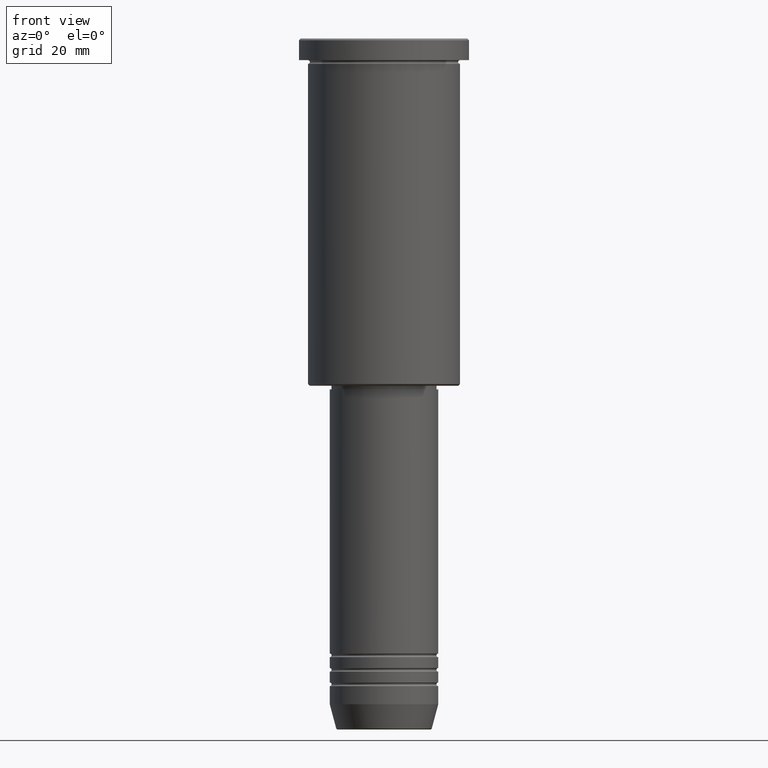
[diagram: clean part render]
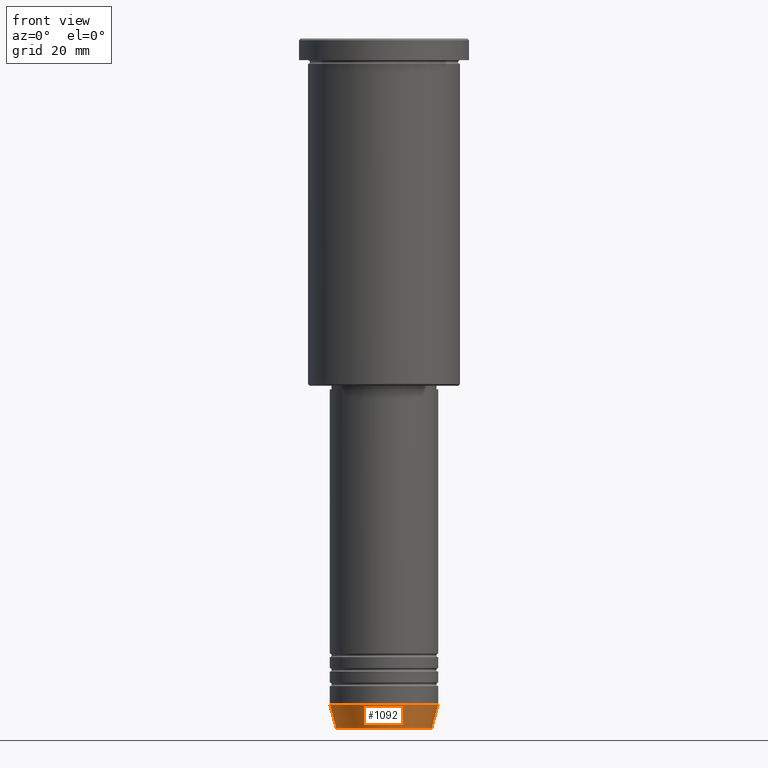
[diagram: same view with one face highlighted and labeled with its STEP entity id]
A machine part, front view. The second image highlights one B-rep face of the part: STEP entity #1092.
In plain terms, the highlighted conical surface has half-angle 15 deg.
Its self-contained STEP definition (entity closure, byte-faithful):
#41 = AXIS2_PLACEMENT_3D ( 'NONE', #715, #505, #1077 ) ;
#42 = AXIS2_PLACEMENT_3D ( 'NONE', #658, #1023, #222 ) ;
#130 = CARTESIAN_POINT ( 'NONE',  ( -15.00000000000000000, 1.836970198721029589E-15, -184.0000000000000000 ) ) ;
#173 = EDGE_CURVE ( 'NONE', #932, #424, #364, .T. ) ;
#175 = CARTESIAN_POINT ( 'NONE',  ( -13.22365507213719660, 1.728200442216588780E-15, -190.6294095225512422 ) ) ;
#190 = CARTESIAN_POINT ( 'NONE',  ( 0.000000000000000000, 0.000000000000000000, -184.0000000000000000 ) ) ;
#202 = DIRECTION ( 'NONE',  ( 1.000000000000000000, 0.000000000000000000, 0.000000000000000000 ) ) ;
#222 = DIRECTION ( 'NONE',  ( 1.000000000000000000, 0.000000000000000000, 0.000000000000000000 ) ) ;
#267 = VERTEX_POINT ( 'NONE', #130 ) ;
#309 = CARTESIAN_POINT ( 'NONE',  ( 13.22365507213719482, 0.000000000000000000, -190.6294095225512422 ) ) ;
#333 = VECTOR ( 'NONE', #725, 1000.000000000000000 ) ;
#364 = LINE ( 'NONE', #1018, #333 ) ;
#381 = DIRECTION ( 'NONE',  ( -0.000000000000000000, -0.000000000000000000, 1.000000000000000000 ) ) ;
#424 = VERTEX_POINT ( 'NONE', #1159 ) ;
#505 = DIRECTION ( 'NONE',  ( -0.000000000000000000, -0.000000000000000000, 1.000000000000000000 ) ) ;
#581 = EDGE_CURVE ( 'NONE', #267, #424, #595, .T. ) ;
#595 = CIRCLE ( 'NONE', #41, 15.00000000000000000 ) ;
#605 = EDGE_CURVE ( 'NONE', #757, #267, #777, .T. ) ;
#649 = ORIENTED_EDGE ( 'NONE', *, *, #581, .F. ) ;
#658 = CARTESIAN_POINT ( 'NONE',  ( 0.000000000000000000, 0.000000000000000000, -190.6294095225512422 ) ) ;
#715 = CARTESIAN_POINT ( 'NONE',  ( 0.000000000000000000, 0.000000000000000000, -184.0000000000000000 ) ) ;
#725 = DIRECTION ( 'NONE',  ( 0.2588190451025213501, 0.000000000000000000, 0.9659258262890680902 ) ) ;
#734 = FACE_OUTER_BOUND ( 'NONE', #1153, .T. ) ;
#757 = VERTEX_POINT ( 'NONE', #175 ) ;
#777 = LINE ( 'NONE', #1163, #901 ) ;
#864 = CONICAL_SURFACE ( 'NONE', #1132, 15.00000000000000000, 0.2617993877991500740 ) ;
#866 = ORIENTED_EDGE ( 'NONE', *, *, #173, .T. ) ;
#871 = DIRECTION ( 'NONE',  ( -0.2588190451025213501, 3.169619151431772337E-17, 0.9659258262890680902 ) ) ;
#901 = VECTOR ( 'NONE', #871, 1000.000000000000000 ) ;
#908 = EDGE_CURVE ( 'NONE', #757, #932, #1168, .T. ) ;
#910 = ORIENTED_EDGE ( 'NONE', *, *, #605, .F. ) ;
#932 = VERTEX_POINT ( 'NONE', #309 ) ;
#1018 = CARTESIAN_POINT ( 'NONE',  ( 15.00000000000000000, 0.000000000000000000, -184.0000000000000000 ) ) ;
#1023 = DIRECTION ( 'NONE',  ( -0.000000000000000000, -0.000000000000000000, 1.000000000000000000 ) ) ;
#1077 = DIRECTION ( 'NONE',  ( 1.000000000000000000, 0.000000000000000000, 0.000000000000000000 ) ) ;
#1092 = ADVANCED_FACE ( 'NONE', ( #734 ), #864, .T. ) ;
#1118 = ORIENTED_EDGE ( 'NONE', *, *, #908, .T. ) ;
#1132 = AXIS2_PLACEMENT_3D ( 'NONE', #190, #381, #202 ) ;
#1153 = EDGE_LOOP ( 'NONE', ( #910, #1118, #866, #649 ) ) ;
#1159 = CARTESIAN_POINT ( 'NONE',  ( 15.00000000000000000, 0.000000000000000000, -184.0000000000000000 ) ) ;
#1163 = CARTESIAN_POINT ( 'NONE',  ( -15.00000000000000000, 1.836970198721029589E-15, -184.0000000000000000 ) ) ;
#1168 = CIRCLE ( 'NONE', #42, 13.22365507213719482 ) ;